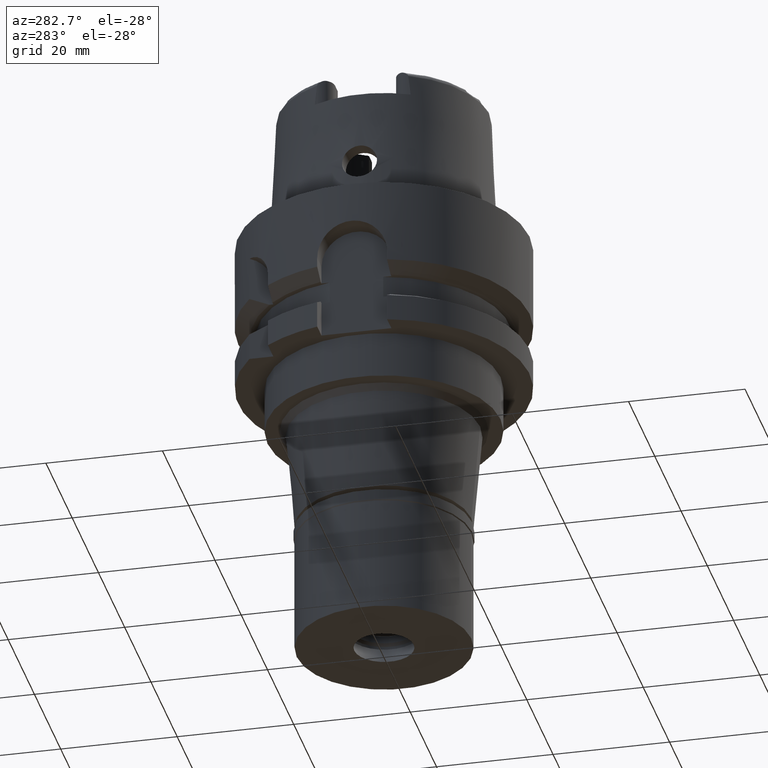
[diagram: clean part render]
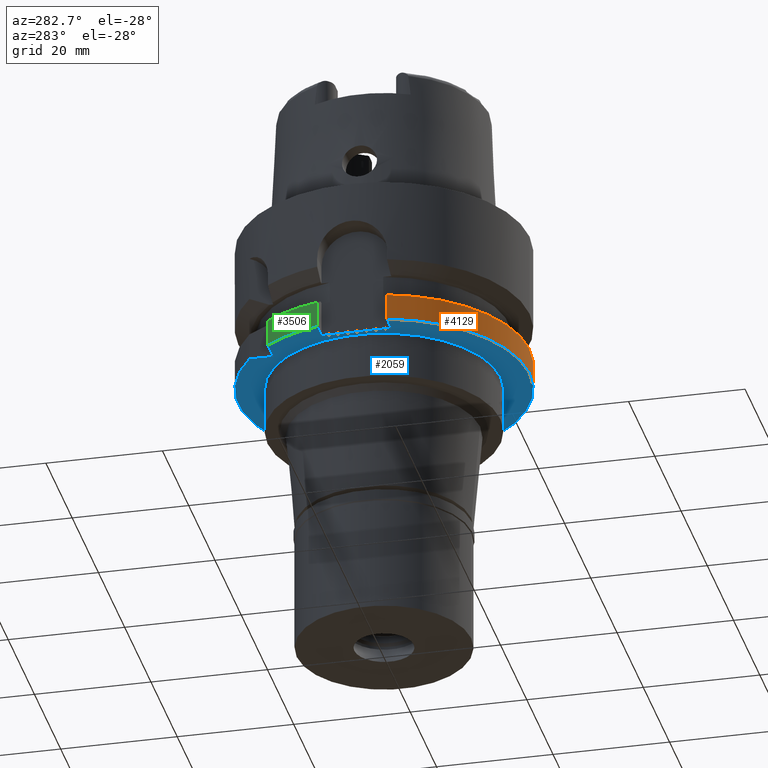
[diagram: same view with three faces highlighted in distinct colors, each labeled with its STEP entity id]
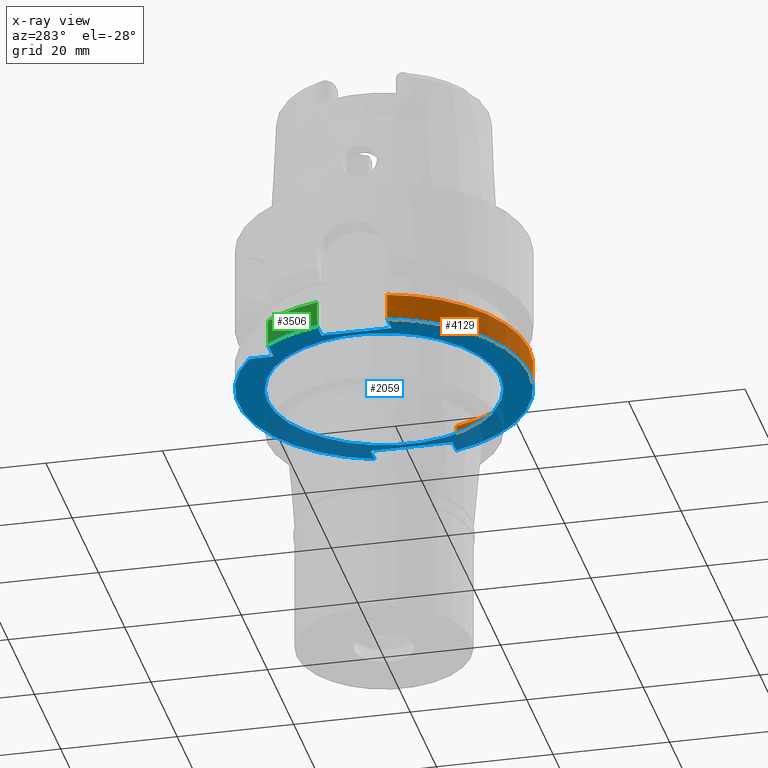
[diagram: x-ray of the same camera — body ghosted, the three highlighted faces saturated]
A machine part, auxiliary view with three faces highlighted in distinct colors.
The next image is the same camera in x-ray (body ghosted, the three faces saturated) — at least one of them is partly hidden behind the body in this view.
Their STEP definitions:

[orange] entity #4129 — the highlighted cylindrical surface (partial cylindrical patch) has radius 25 mm, axis along (0, 0, 1).
#154 = EDGE_CURVE ( 'NONE', #966, #2731, #4778, .T. ) ;
#173 = DIRECTION ( 'NONE',  ( -1.381809666070996425E-08, -4.737603054070993702E-08, -0.9999999999999987788 ) ) ;
#315 = DIRECTION ( 'NONE',  ( 0.0000000000000000000, -1.000000000000000000, 0.0000000000000000000 ) ) ;
#856 = LINE ( 'NONE', #2893, #2944 ) ;
#867 = CIRCLE ( 'NONE', #4312, 25.00000000000000000 ) ;
#914 = DIRECTION ( 'NONE',  ( 0.0000000000000000000, 0.0000000000000000000, 1.000000000000000000 ) ) ;
#966 = VERTEX_POINT ( 'NONE', #3979 ) ;
#1118 = AXIS2_PLACEMENT_3D ( 'NONE', #1558, #4953, #1148 ) ;
#1148 = DIRECTION ( 'NONE',  ( 0.9599999999999999645, -0.2800000000000000266, 0.0000000000000000000 ) ) ;
#1528 = CARTESIAN_POINT ( 'NONE',  ( -24.26932203504999919, -6.000000663250999899, -21.37750544506000239 ) ) ;
#1543 = CARTESIAN_POINT ( 'NONE',  ( 0.0000000000000000000, 0.0000000000000000000, -26.00000000000000000 ) ) ;
#1558 = CARTESIAN_POINT ( 'NONE',  ( 0.0000000000000000000, 0.0000000000000000000, -21.37749907476000288 ) ) ;
#1662 = EDGE_CURVE ( 'NONE', #4080, #2731, #867, .T. ) ;
#1720 = ORIENTED_EDGE ( 'NONE', *, *, #2546, .F. ) ;
#1764 = CARTESIAN_POINT ( 'NONE',  ( 24.00000006387000084, -6.999999781003999999, -21.37749727321000037 ) ) ;
#1969 = EDGE_CURVE ( 'NONE', #966, #4923, #4753, .T. ) ;
#1986 = DIRECTION ( 'NONE',  ( 0.0000000000000000000, 0.0000000000000000000, 1.000000000000000000 ) ) ;
#2546 = EDGE_CURVE ( 'NONE', #4080, #4923, #856, .T. ) ;
#2590 = DIRECTION ( 'NONE',  ( 0.0000000000000000000, 1.000000000000000000, 0.0000000000000000000 ) ) ;
#2731 = VERTEX_POINT ( 'NONE', #3272 ) ;
#2893 = CARTESIAN_POINT ( 'NONE',  ( -24.26932219902000298, -6.000000000000000000, -26.00000000000000000 ) ) ;
#2944 = VECTOR ( 'NONE', #3400, 1000.000000000000114 ) ;
#3060 = FACE_OUTER_BOUND ( 'NONE', #3171, .T. ) ;
#3171 = EDGE_LOOP ( 'NONE', ( #1720, #4790, #5094, #3366 ) ) ;
#3272 = CARTESIAN_POINT ( 'NONE',  ( 24.00000000000000000, -7.000000000000000000, -26.00000000000000000 ) ) ;
#3366 = ORIENTED_EDGE ( 'NONE', *, *, #1969, .T. ) ;
#3400 = DIRECTION ( 'NONE',  ( 3.547269850604960286E-08, -1.434833690739984165E-07, 0.9999999999999891198 ) ) ;
#3979 = CARTESIAN_POINT ( 'NONE',  ( 24.00000000000000000, -7.000000000000000000, -21.37749907476000288 ) ) ;
#3984 = CYLINDRICAL_SURFACE ( 'NONE', #4986, 25.00000000000000000 ) ;
#4080 = VERTEX_POINT ( 'NONE', #5417 ) ;
#4129 = ADVANCED_FACE ( 'NONE', ( #3060 ), #3984, .T. ) ;
#4312 = AXIS2_PLACEMENT_3D ( 'NONE', #1543, #1986, #315 ) ;
#4737 = CARTESIAN_POINT ( 'NONE',  ( 0.0000000000000000000, 0.0000000000000000000, -72.96500000000000341 ) ) ;
#4753 = CIRCLE ( 'NONE', #1118, 25.00000000000000000 ) ;
#4768 = VECTOR ( 'NONE', #173, 1000.000000000000114 ) ;
#4778 = LINE ( 'NONE', #1764, #4768 ) ;
#4790 = ORIENTED_EDGE ( 'NONE', *, *, #1662, .T. ) ;
#4923 = VERTEX_POINT ( 'NONE', #1528 ) ;
#4953 = DIRECTION ( 'NONE',  ( 0.0000000000000000000, 0.0000000000000000000, -1.000000000000000000 ) ) ;
#4986 = AXIS2_PLACEMENT_3D ( 'NONE', #4737, #914, #2590 ) ;
#5094 = ORIENTED_EDGE ( 'NONE', *, *, #154, .F. ) ;
#5417 = CARTESIAN_POINT ( 'NONE',  ( -24.26932219902000298, -6.000000000000000000, -26.00000000000000000 ) ) ;

[blue] entity #2059 — the highlighted planar face has unit normal (0, 0, 1).
#14 = DIRECTION ( 'NONE',  ( 1.195736170823999807E-13, -1.000000000000000000, 0.0000000000000000000 ) ) ;
#38 = CARTESIAN_POINT ( 'NONE',  ( -19.61504524593285126, 15.50000000000025047, -26.00000000000000000 ) ) ;
#235 = EDGE_LOOP ( 'NONE', ( #3839, #1453, #765, #1643, #3022, #3194, #4398, #3926, #323, #1099, #939 ) ) ;
#315 = DIRECTION ( 'NONE',  ( 0.0000000000000000000, -1.000000000000000000, 0.0000000000000000000 ) ) ;
#323 = ORIENTED_EDGE ( 'NONE', *, *, #4987, .F. ) ;
#394 = AXIS2_PLACEMENT_3D ( 'NONE', #5410, #1144, #1995 ) ;
#413 = DIRECTION ( 'NONE',  ( 1.000000000000000000, 0.0000000000000000000, 0.0000000000000000000 ) ) ;
#414 = CARTESIAN_POINT ( 'NONE',  ( -21.00000000000000000, 6.000000000000000000, -26.00000000000000000 ) ) ;
#469 = EDGE_CURVE ( 'NONE', #4634, #4672, #2622, .T. ) ;
#493 = CARTESIAN_POINT ( 'NONE',  ( 0.0000000000000000000, 0.0000000000000000000, -26.00000000000000000 ) ) ;
#691 = AXIS2_PLACEMENT_3D ( 'NONE', #1082, #5289, #3657 ) ;
#738 = VECTOR ( 'NONE', #4108, 1000.000000000000000 ) ;
#756 = CARTESIAN_POINT ( 'NONE',  ( 21.00000000000000000, -7.000000000000000000, -26.00000000000000000 ) ) ;
#764 = CARTESIAN_POINT ( 'NONE',  ( -21.00000000000000000, -6.000000000000000000, -26.00000000000000000 ) ) ;
#765 = ORIENTED_EDGE ( 'NONE', *, *, #1963, .T. ) ;
#867 = CIRCLE ( 'NONE', #4312, 25.00000000000000000 ) ;
#939 = ORIENTED_EDGE ( 'NONE', *, *, #4425, .F. ) ;
#960 = FACE_BOUND ( 'NONE', #2256, .T. ) ;
#1026 = DIRECTION ( 'NONE',  ( 0.0000000000000000000, 1.000000000000000000, 0.0000000000000000000 ) ) ;
#1082 = CARTESIAN_POINT ( 'NONE',  ( 0.0000000000000000000, 0.0000000000000000000, -26.00000000000000000 ) ) ;
#1099 = ORIENTED_EDGE ( 'NONE', *, *, #3946, .F. ) ;
#1144 = DIRECTION ( 'NONE',  ( 0.0000000000000000000, 0.0000000000000000000, 1.000000000000000000 ) ) ;
#1177 = CARTESIAN_POINT ( 'NONE',  ( 21.00000000000000000, 7.000000000000000000, -26.00000000000000000 ) ) ;
#1204 = DIRECTION ( 'NONE',  ( -1.000000000000000000, 7.606774198959000278E-14, 0.0000000000000000000 ) ) ;
#1309 = CARTESIAN_POINT ( 'NONE',  ( 21.00000000000000000, 7.000000000000000000, -26.00000000000000000 ) ) ;
#1337 = DIRECTION ( 'NONE',  ( 0.0000000000000000000, 0.0000000000000000000, 1.000000000000000000 ) ) ;
#1374 = CARTESIAN_POINT ( 'NONE',  ( -15.50000000000000000, 19.61504524592999843, -26.00000000000000000 ) ) ;
#1453 = ORIENTED_EDGE ( 'NONE', *, *, #2123, .F. ) ;
#1533 = DIRECTION ( 'NONE',  ( -1.000000000000000000, 1.195736170823999807E-13, 0.0000000000000000000 ) ) ;
#1543 = CARTESIAN_POINT ( 'NONE',  ( 0.0000000000000000000, 0.0000000000000000000, -26.00000000000000000 ) ) ;
#1597 = VERTEX_POINT ( 'NONE', #3068 ) ;
#1613 = DIRECTION ( 'NONE',  ( 0.0000000000000000000, -1.000000000000000000, 0.0000000000000000000 ) ) ;
#1616 = CIRCLE ( 'NONE', #3027, 20.00000000000000000 ) ;
#1642 = EDGE_CURVE ( 'NONE', #3539, #2731, #3239, .T. ) ;
#1643 = ORIENTED_EDGE ( 'NONE', *, *, #1642, .T. ) ;
#1650 = VECTOR ( 'NONE', #1613, 1000.000000000000000 ) ;
#1662 = EDGE_CURVE ( 'NONE', #4080, #2731, #867, .T. ) ;
#1670 = VERTEX_POINT ( 'NONE', #2799 ) ;
#1743 = DIRECTION ( 'NONE',  ( 0.0000000000000000000, 1.000000000000000000, 0.0000000000000000000 ) ) ;
#1963 = EDGE_CURVE ( 'NONE', #2478, #3539, #4976, .T. ) ;
#1984 = VECTOR ( 'NONE', #1533, 1000.000000000000000 ) ;
#1986 = DIRECTION ( 'NONE',  ( 0.0000000000000000000, 0.0000000000000000000, 1.000000000000000000 ) ) ;
#1995 = DIRECTION ( 'NONE',  ( -0.7846018098373132021, 0.6200000000000100986, 0.0000000000000000000 ) ) ;
#2000 = VERTEX_POINT ( 'NONE', #38 ) ;
#2002 = CARTESIAN_POINT ( 'NONE',  ( -15.50000000000000000, 15.50000000000000000, -26.00000000000000000 ) ) ;
#2004 = CARTESIAN_POINT ( 'NONE',  ( 0.0000000000000000000, -20.00000000000000000, -26.00000000000000000 ) ) ;
#2006 = CARTESIAN_POINT ( 'NONE',  ( 21.00000000000000000, 7.000000000000000000, -26.00000000000000000 ) ) ;
#2059 = ADVANCED_FACE ( 'NONE', ( #4280, #960 ), #4307, .F. ) ;
#2123 = EDGE_CURVE ( 'NONE', #2478, #4634, #3050, .T. ) ;
#2256 = EDGE_LOOP ( 'NONE', ( #3141, #3515 ) ) ;
#2478 = VERTEX_POINT ( 'NONE', #2006 ) ;
#2492 = CIRCLE ( 'NONE', #394, 24.99999999999999645 ) ;
#2622 = CIRCLE ( 'NONE', #691, 25.00000000000000000 ) ;
#2731 = VERTEX_POINT ( 'NONE', #3272 ) ;
#2799 = CARTESIAN_POINT ( 'NONE',  ( -21.00000000000000000, 6.000000000000000000, -26.00000000000000000 ) ) ;
#2914 = CARTESIAN_POINT ( 'NONE',  ( 24.00000000000000000, 7.000000000000000000, -26.00000000000000000 ) ) ;
#2934 = CARTESIAN_POINT ( 'NONE',  ( 0.0000000000000000000, 0.0000000000000000000, -26.00000000000000000 ) ) ;
#2964 = VERTEX_POINT ( 'NONE', #4717 ) ;
#3022 = ORIENTED_EDGE ( 'NONE', *, *, #1662, .F. ) ;
#3027 = AXIS2_PLACEMENT_3D ( 'NONE', #4119, #4551, #5288 ) ;
#3050 = LINE ( 'NONE', #1309, #5191 ) ;
#3068 = CARTESIAN_POINT ( 'NONE',  ( 0.0000000000000000000, 20.00000000000000000, -26.00000000000000000 ) ) ;
#3141 = ORIENTED_EDGE ( 'NONE', *, *, #5161, .F. ) ;
#3194 = ORIENTED_EDGE ( 'NONE', *, *, #5054, .F. ) ;
#3239 = LINE ( 'NONE', #756, #5021 ) ;
#3272 = CARTESIAN_POINT ( 'NONE',  ( 24.00000000000000000, -7.000000000000000000, -26.00000000000000000 ) ) ;
#3313 = LINE ( 'NONE', #414, #3733 ) ;
#3345 = VERTEX_POINT ( 'NONE', #4472 ) ;
#3362 = DIRECTION ( 'NONE',  ( 0.0000000000000000000, 0.0000000000000000000, -1.000000000000000000 ) ) ;
#3448 = CIRCLE ( 'NONE', #4787, 20.00000000000000000 ) ;
#3455 = EDGE_CURVE ( 'NONE', #4721, #1597, #1616, .T. ) ;
#3484 = LINE ( 'NONE', #5178, #4815 ) ;
#3515 = ORIENTED_EDGE ( 'NONE', *, *, #3455, .F. ) ;
#3539 = VERTEX_POINT ( 'NONE', #4683 ) ;
#3657 = DIRECTION ( 'NONE',  ( 0.0000000000000000000, 1.000000000000000000, 0.0000000000000000000 ) ) ;
#3698 = LINE ( 'NONE', #764, #738 ) ;
#3733 = VECTOR ( 'NONE', #1204, 1000.000000000000000 ) ;
#3839 = ORIENTED_EDGE ( 'NONE', *, *, #469, .F. ) ;
#3926 = ORIENTED_EDGE ( 'NONE', *, *, #4741, .T. ) ;
#3946 = EDGE_CURVE ( 'NONE', #2964, #2000, #4546, .T. ) ;
#4047 = DIRECTION ( 'NONE',  ( 1.000000000000000000, 0.0000000000000000000, 0.0000000000000000000 ) ) ;
#4080 = VERTEX_POINT ( 'NONE', #5417 ) ;
#4108 = DIRECTION ( 'NONE',  ( -1.000000000000000000, -7.552440097537000745E-14, 0.0000000000000000000 ) ) ;
#4116 = VERTEX_POINT ( 'NONE', #4351 ) ;
#4119 = CARTESIAN_POINT ( 'NONE',  ( 0.0000000000000000000, 0.0000000000000000000, -26.00000000000000000 ) ) ;
#4211 = AXIS2_PLACEMENT_3D ( 'NONE', #493, #1337, #5140 ) ;
#4280 = FACE_OUTER_BOUND ( 'NONE', #235, .T. ) ;
#4292 = EDGE_CURVE ( 'NONE', #3345, #1670, #3484, .T. ) ;
#4307 = PLANE ( 'NONE',  #4211 ) ;
#4312 = AXIS2_PLACEMENT_3D ( 'NONE', #1543, #1986, #315 ) ;
#4351 = CARTESIAN_POINT ( 'NONE',  ( -24.26932219902000298, 6.000000000000000000, -26.00000000000000000 ) ) ;
#4398 = ORIENTED_EDGE ( 'NONE', *, *, #4292, .T. ) ;
#4425 = EDGE_CURVE ( 'NONE', #4672, #2964, #5177, .T. ) ;
#4472 = CARTESIAN_POINT ( 'NONE',  ( -21.00000000000000000, -6.000000000000000000, -26.00000000000000000 ) ) ;
#4546 = LINE ( 'NONE', #2002, #1984 ) ;
#4551 = DIRECTION ( 'NONE',  ( 0.0000000000000000000, 0.0000000000000000000, -1.000000000000000000 ) ) ;
#4634 = VERTEX_POINT ( 'NONE', #2914 ) ;
#4638 = VECTOR ( 'NONE', #14, 1000.000000000000000 ) ;
#4672 = VERTEX_POINT ( 'NONE', #4955 ) ;
#4683 = CARTESIAN_POINT ( 'NONE',  ( 21.00000000000000000, -7.000000000000000000, -26.00000000000000000 ) ) ;
#4717 = CARTESIAN_POINT ( 'NONE',  ( -15.50000000000000000, 15.50000000000000000, -26.00000000000000000 ) ) ;
#4721 = VERTEX_POINT ( 'NONE', #2004 ) ;
#4741 = EDGE_CURVE ( 'NONE', #1670, #4116, #3313, .T. ) ;
#4787 = AXIS2_PLACEMENT_3D ( 'NONE', #2934, #3362, #1743 ) ;
#4815 = VECTOR ( 'NONE', #1026, 1000.000000000000000 ) ;
#4955 = CARTESIAN_POINT ( 'NONE',  ( -15.50000000000000000, 19.61504524592999843, -26.00000000000000000 ) ) ;
#4976 = LINE ( 'NONE', #1177, #1650 ) ;
#4987 = EDGE_CURVE ( 'NONE', #2000, #4116, #2492, .T. ) ;
#5021 = VECTOR ( 'NONE', #4047, 1000.000000000000000 ) ;
#5054 = EDGE_CURVE ( 'NONE', #3345, #4080, #3698, .T. ) ;
#5140 = DIRECTION ( 'NONE',  ( 1.000000000000000000, 0.0000000000000000000, 0.0000000000000000000 ) ) ;
#5161 = EDGE_CURVE ( 'NONE', #1597, #4721, #3448, .T. ) ;
#5177 = LINE ( 'NONE', #1374, #4638 ) ;
#5178 = CARTESIAN_POINT ( 'NONE',  ( -21.00000000000000000, -6.000000000000000000, -26.00000000000000000 ) ) ;
#5191 = VECTOR ( 'NONE', #413, 1000.000000000000000 ) ;
#5288 = DIRECTION ( 'NONE',  ( 0.0000000000000000000, -1.000000000000000000, 0.0000000000000000000 ) ) ;
#5289 = DIRECTION ( 'NONE',  ( 0.0000000000000000000, 0.0000000000000000000, 1.000000000000000000 ) ) ;
#5410 = CARTESIAN_POINT ( 'NONE',  ( 0.0000000000000000000, 0.0000000000000000000, -26.00000000000000000 ) ) ;
#5417 = CARTESIAN_POINT ( 'NONE',  ( -24.26932219902000298, -6.000000000000000000, -26.00000000000000000 ) ) ;

[green] entity #3506 — the highlighted cylindrical surface (partial cylindrical patch) has radius 25 mm, axis along (0, 0, 1).
#38 = CARTESIAN_POINT ( 'NONE',  ( -19.61504524593285126, 15.50000000000025047, -26.00000000000000000 ) ) ;
#113 = DIRECTION ( 'NONE',  ( 7.375840423621996684E-09, 2.983408785779998566E-08, -0.9999999999999995559 ) ) ;
#363 = VERTEX_POINT ( 'NONE', #1988 ) ;
#394 = AXIS2_PLACEMENT_3D ( 'NONE', #5410, #1144, #1995 ) ;
#479 = CIRCLE ( 'NONE', #3568, 24.99999999999999645 ) ;
#573 = EDGE_LOOP ( 'NONE', ( #3732, #603, #3809, #2332 ) ) ;
#603 = ORIENTED_EDGE ( 'NONE', *, *, #5391, .F. ) ;
#660 = AXIS2_PLACEMENT_3D ( 'NONE', #3376, #3796, #2950 ) ;
#831 = CYLINDRICAL_SURFACE ( 'NONE', #660, 25.00000000000000000 ) ;
#1038 = LINE ( 'NONE', #5165, #1656 ) ;
#1144 = DIRECTION ( 'NONE',  ( 0.0000000000000000000, 0.0000000000000000000, 1.000000000000000000 ) ) ;
#1223 = DIRECTION ( 'NONE',  ( 0.0000000000000000000, 0.0000000000000000000, -1.000000000000000000 ) ) ;
#1227 = EDGE_CURVE ( 'NONE', #2000, #363, #1038, .T. ) ;
#1415 = DIRECTION ( 'NONE',  ( 0.0000000000000000000, 0.0000000000000000000, 1.000000000000000000 ) ) ;
#1656 = VECTOR ( 'NONE', #1415, 1000.000000000000000 ) ;
#1711 = CARTESIAN_POINT ( 'NONE',  ( -24.26932219902000298, 6.000000000001000089, -21.37749907476000288 ) ) ;
#1950 = VECTOR ( 'NONE', #113, 1000.000000000000000 ) ;
#1988 = CARTESIAN_POINT ( 'NONE',  ( -19.61503421991999829, 15.50001395324999898, -21.37755013309999796 ) ) ;
#1995 = DIRECTION ( 'NONE',  ( -0.7846018098373132021, 0.6200000000000100986, 0.0000000000000000000 ) ) ;
#2000 = VERTEX_POINT ( 'NONE', #38 ) ;
#2332 = ORIENTED_EDGE ( 'NONE', *, *, #1227, .F. ) ;
#2492 = CIRCLE ( 'NONE', #394, 24.99999999999999645 ) ;
#2672 = EDGE_CURVE ( 'NONE', #3234, #363, #479, .T. ) ;
#2950 = DIRECTION ( 'NONE',  ( 0.0000000000000000000, 1.000000000000000000, 0.0000000000000000000 ) ) ;
#3234 = VERTEX_POINT ( 'NONE', #1711 ) ;
#3376 = CARTESIAN_POINT ( 'NONE',  ( 0.0000000000000000000, 0.0000000000000000000, -72.96500000000000341 ) ) ;
#3506 = ADVANCED_FACE ( 'NONE', ( #3843 ), #831, .T. ) ;
#3568 = AXIS2_PLACEMENT_3D ( 'NONE', #4613, #1223, #4155 ) ;
#3732 = ORIENTED_EDGE ( 'NONE', *, *, #4987, .T. ) ;
#3796 = DIRECTION ( 'NONE',  ( 0.0000000000000000000, 0.0000000000000000000, 1.000000000000000000 ) ) ;
#3809 = ORIENTED_EDGE ( 'NONE', *, *, #2672, .T. ) ;
#3843 = FACE_OUTER_BOUND ( 'NONE', #573, .T. ) ;
#3969 = CARTESIAN_POINT ( 'NONE',  ( -24.26932223311999692, 5.999999862092000313, -21.37749775022999899 ) ) ;
#4116 = VERTEX_POINT ( 'NONE', #4351 ) ;
#4155 = DIRECTION ( 'NONE',  ( -0.9707728879609262007, 0.2400000000000065414, 0.0000000000000000000 ) ) ;
#4351 = CARTESIAN_POINT ( 'NONE',  ( -24.26932219902000298, 6.000000000000000000, -26.00000000000000000 ) ) ;
#4613 = CARTESIAN_POINT ( 'NONE',  ( 0.0000000000000000000, 0.0000000000000000000, -21.37749907476000288 ) ) ;
#4861 = LINE ( 'NONE', #3969, #1950 ) ;
#4987 = EDGE_CURVE ( 'NONE', #2000, #4116, #2492, .T. ) ;
#5165 = CARTESIAN_POINT ( 'NONE',  ( -19.61504524593305021, 15.50000000000000000, -72.96500000000000341 ) ) ;
#5391 = EDGE_CURVE ( 'NONE', #3234, #4116, #4861, .T. ) ;
#5410 = CARTESIAN_POINT ( 'NONE',  ( 0.0000000000000000000, 0.0000000000000000000, -26.00000000000000000 ) ) ;